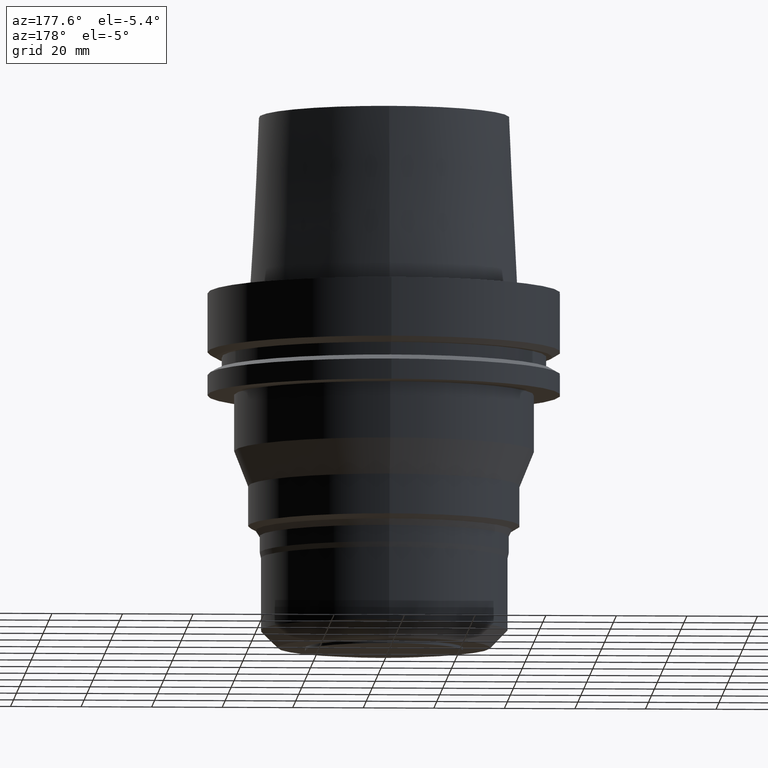
[diagram: clean part render]
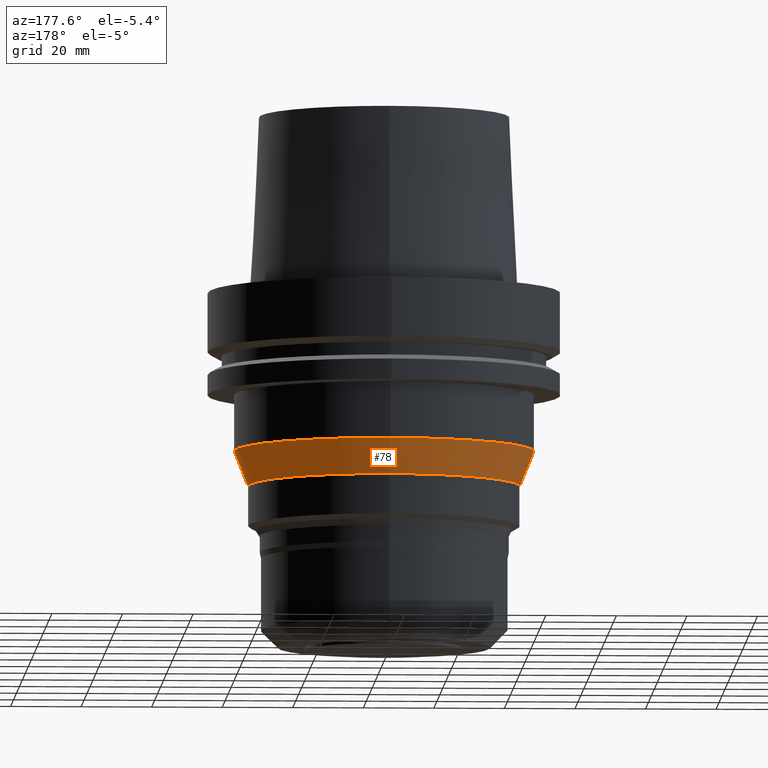
[diagram: same view with one face highlighted and labeled with its STEP entity id]
A machine part, auxiliary view. The second image highlights one B-rep face of the part: STEP entity #78.
In plain terms, the highlighted conical surface has half-angle 22.001 deg.
Its self-contained STEP definition (entity closure, byte-faithful):
#78=ADVANCED_FACE('Unnamed[1]',(#214,#215),#216,.T.);
#107=EDGE_CURVE('Unnamed[1]',#260,#260,#261,.T.);
#111=EDGE_CURVE('Unnamed[1]',#266,#266,#267,.T.);
#214=FACE_BOUND('',#406,.T.);
#215=FACE_BOUND('',#407,.T.);
#216=CONICAL_SURFACE('',#408,40.5000000463458,0.383984623955061);
#260=VERTEX_POINT('',#464);
#261=CIRCLE('',#465,38.5000000926919);
#266=VERTEX_POINT('',#472);
#267=CIRCLE('',#473,42.4999999999997);
#406=EDGE_LOOP('',(#630));
#407=EDGE_LOOP('',(#631));
#408=AXIS2_PLACEMENT_3D('',#632,#633,#634);
#464=CARTESIAN_POINT('',(3.36165544961199E-015,38.5000000926919,-54.899999770587));
#465=AXIS2_PLACEMENT_3D('',#682,#683,#684);
#472=CARTESIAN_POINT('',(2.75545529808163E-015,42.4999999999997,-45.0000000000014));
#473=AXIS2_PLACEMENT_3D('',#688,#689,#690);
#630=ORIENTED_EDGE('',*,*,#107,.F.);
#631=ORIENTED_EDGE('',*,*,#111,.T.);
#632=CARTESIAN_POINT('',(3.05855537384681E-015,9.35511145588885E-015,-49.9499998852942));
#633=DIRECTION('',(-6.12323399573677E-017,-8.53138753389863E-016,1.0));
#634=DIRECTION('',(-5.7066834909142E-032,1.0,8.53138753389863E-016));
#682=CARTESIAN_POINT('',(3.36165544961199E-015,1.35781481873075E-014,-54.899999770587));
#683=DIRECTION('',(6.12323399573677E-017,8.53138753389863E-016,-1.0));
#684=DIRECTION('',(-5.7066834909142E-032,1.0,8.53138753389863E-016));
#688=CARTESIAN_POINT('',(2.75545529808163E-015,5.13207472447017E-015,-45.0000000000014));
#689=DIRECTION('',(6.12323399573677E-017,8.53138753389863E-016,-1.0));
#690=DIRECTION('',(-5.7066834909142E-032,1.0,8.53138753389863E-016));